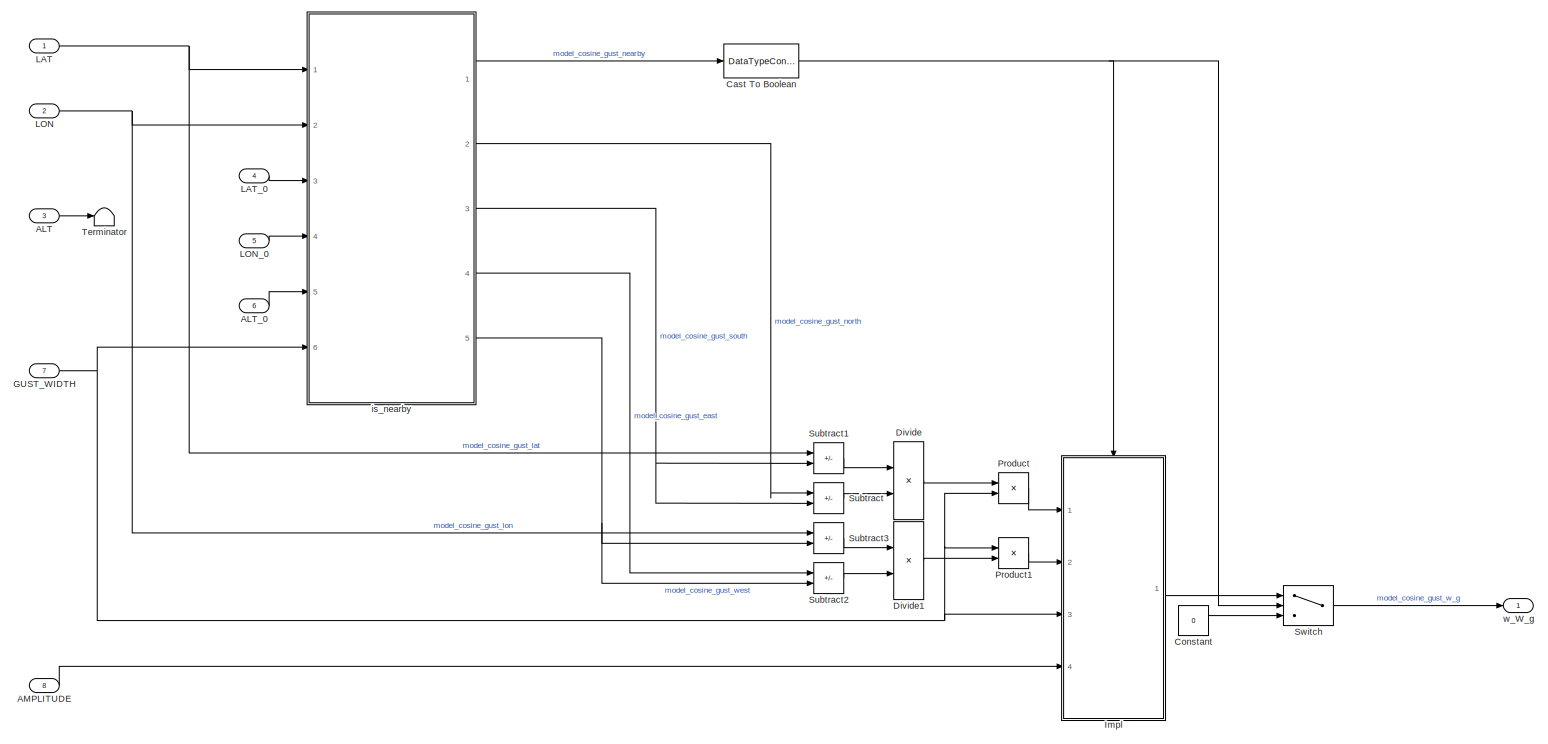
[diagram: root canvas - part 1/1, most of the canvas]
MODEL slx_9f7d04a0fe7e
KIND model
BLOCK [Inport] ALT
  OutDataTypeStr = double
  Port = 3
BLOCK [Inport] ALT_0
  OutDataTypeStr = double
  Port = 6
BLOCK [Inport] AMPLITUDE
  OutDataTypeStr = double
  Port = 8
BLOCK [DataTypeConversion] Cast To Boolean
  OutDataTypeStr = boolean
  RndMeth = Floor
  SaturateOnIntegerOverflow = off
BLOCK [Constant] Constant
  Value = 0
BLOCK [Product] Divide
  Inputs = */
  Ports = [2, 1]
BLOCK [Product] Divide1
  Inputs = */
  Ports = [2, 1]
BLOCK [Inport] GUST_WIDTH
  OutDataTypeStr = double
  Port = 7
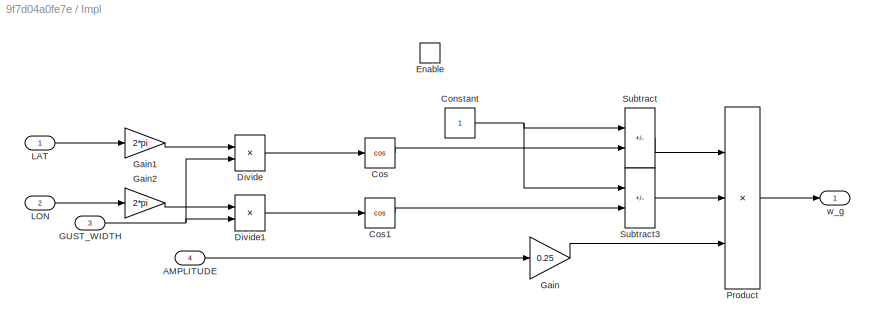
BLOCK [SubSystem] Impl
  Ports = [4, 1, 1]
  RequestExecContextInheritance = off
  TreatAsAtomicUnit = on
BLOCK [Inport] Impl/AMPLITUDE
  OutDataTypeStr = double
  Port = 4
BLOCK [Constant] Impl/Constant
BLOCK [Trigonometry] Impl/Cos
  Operator = cos
  Ports = [1, 1]
BLOCK [Trigonometry] Impl/Cos1
  Operator = cos
  Ports = [1, 1]
BLOCK [Product] Impl/Divide
  Inputs = */
  Ports = [2, 1]
BLOCK [Product] Impl/Divide1
  Inputs = */
  Ports = [2, 1]
BLOCK [EnablePort] Impl/Enable
  Ports = []
BLOCK [Inport] Impl/GUST_WIDTH
  OutDataTypeStr = double
  Port = 3
BLOCK [Gain] Impl/Gain
  Gain = 0.25
BLOCK [Gain] Impl/Gain1
  Gain = 2*pi
BLOCK [Gain] Impl/Gain2
  Gain = 2*pi
BLOCK [Inport] Impl/LAT
  OutDataTypeStr = double
BLOCK [Inport] Impl/LON
  OutDataTypeStr = double
  Port = 2
BLOCK [Product] Impl/Product
  Inputs = 3
  Ports = [3, 1]
BLOCK [Sum] Impl/Subtract
  IconShape = rectangular
  Inputs = +-
  Ports = [2, 1]
BLOCK [Sum] Impl/Subtract3
  IconShape = rectangular
  Inputs = +-
  Ports = [2, 1]
BLOCK [Outport] Impl/w_g
  OutDataTypeStr = double
BLOCK [Inport] LAT
  OutDataTypeStr = double
BLOCK [Inport] LAT_0
  OutDataTypeStr = double
  Port = 4
BLOCK [Inport] LON
  OutDataTypeStr = double
  Port = 2
BLOCK [Inport] LON_0
  OutDataTypeStr = double
  Port = 5
BLOCK [Product] Product
  Ports = [2, 1]
BLOCK [Product] Product1
  Ports = [2, 1]
BLOCK [Sum] Subtract
  IconShape = rectangular
  Inputs = +-
  Ports = [2, 1]
BLOCK [Sum] Subtract1
  IconShape = rectangular
  Inputs = +-
  Ports = [2, 1]
BLOCK [Sum] Subtract2
  IconShape = rectangular
  Inputs = +-
  Ports = [2, 1]
BLOCK [Sum] Subtract3
  IconShape = rectangular
  Inputs = +-
  Ports = [2, 1]
BLOCK [Switch] Switch
  Criteria = u2 > Threshold
  InputSameDT = off
  SaturateOnIntegerOverflow = off
BLOCK [Terminator] Terminator
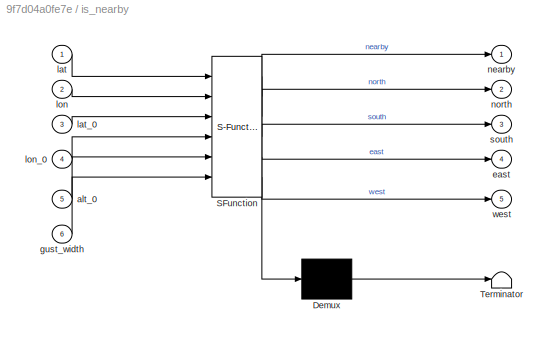
BLOCK [SubSystem] is_nearby
  ErrorFcn = Stateflow.Translate.translate
  PermitHierarchicalResolution = ExplicitOnly
  Ports = [6, 5]
  RequestExecContextInheritance = off
  SFBlockType = MATLAB Function
  TreatAsAtomicUnit = on
BLOCK [Demux] is_nearby/ Demux 
  Outputs = 1
  Ports = [1, 1]
BLOCK [S-Function] is_nearby/ SFunction 
  EnableBusSupport = on
  FunctionName = sf_sfun
  PortCounts = [6 6]
  Ports = [6, 6]
  SFcnIsStateOwnerBlock = off
  SFunctionDeploymentMode = off
  Tag = Stateflow S-Function 1
BLOCK [Terminator] is_nearby/ Terminator 
BLOCK [Inport] is_nearby/alt_0
  Port = 5
BLOCK [Outport] is_nearby/east
  Port = 4
BLOCK [Inport] is_nearby/gust_width
  Port = 6
BLOCK [Inport] is_nearby/lat
BLOCK [Inport] is_nearby/lat_0
  Port = 3
BLOCK [Inport] is_nearby/lon
  Port = 2
BLOCK [Inport] is_nearby/lon_0
  Port = 4
BLOCK [Outport] is_nearby/nearby
BLOCK [Outport] is_nearby/north
  Port = 2
BLOCK [Outport] is_nearby/south
  Port = 3
BLOCK [Outport] is_nearby/west
  Port = 5
BLOCK [Outport] w_W_g
  OutDataTypeStr = double
  SignalName = w_W_g
LINE ALT:1 -> Terminator:1
LINE ALT_0:1 -> is_nearby:5
LINE AMPLITUDE:1 -> Impl:4
NET Cast To Boolean:1 -> Impl:enable, Switch:2
LINE Constant:1 -> Switch:3
LINE Divide1:1 -> Product1:2
LINE Divide:1 -> Product:1
NET GUST_WIDTH:1 -> Impl:3, Product1:1, Product:2, is_nearby:6
LINE Impl/AMPLITUDE:1 -> Impl/Gain:1
NET Impl/Constant:1 -> Impl/Subtract3:1, Impl/Subtract:1
LINE Impl/Cos1:1 -> Impl/Subtract3:2
LINE Impl/Cos:1 -> Impl/Subtract:2
LINE Impl/Divide1:1 -> Impl/Cos1:1
LINE Impl/Divide:1 -> Impl/Cos:1
NET Impl/GUST_WIDTH:1 -> Impl/Divide1:2, Impl/Divide:2
LINE Impl/Gain1:1 -> Impl/Divide:1
LINE Impl/Gain2:1 -> Impl/Divide1:1
LINE Impl/Gain:1 -> Impl/Product:3
LINE Impl/LAT:1 -> Impl/Gain1:1
LINE Impl/LON:1 -> Impl/Gain2:1
LINE Impl/Product:1 -> Impl/w_g:1
LINE Impl/Subtract3:1 -> Impl/Product:2
LINE Impl/Subtract:1 -> Impl/Product:1
LINE Impl:1 -> Switch:1
NET LAT:1 -> Subtract1:1, is_nearby:1
LINE LAT_0:1 -> is_nearby:3
NET LON:1 -> Subtract3:1, is_nearby:2
LINE LON_0:1 -> is_nearby:4
LINE Product1:1 -> Impl:2
LINE Product:1 -> Impl:1
LINE Subtract1:1 -> Divide:1
LINE Subtract2:1 -> Divide1:2
LINE Subtract3:1 -> Divide1:1
LINE Subtract:1 -> Divide:2
LINE Switch:1 -> w_W_g:1
LINE is_nearby:1 -> Cast To Boolean:1
LINE is_nearby:2 -> Subtract:1
NET is_nearby:3 -> Subtract1:2, Subtract:2
LINE is_nearby:4 -> Subtract2:1
NET is_nearby:5 -> Subtract2:2, Subtract3:2
note: NET lines group one-source signal fan-out (src -> all destinations, sorted); 1:1 wires keep LINE
CHART is_nearby states=1 transitions=1
  STATE_LABEL 'eML_blk_kernel()'
  STATE_LABEL 'SCRIPT:\n% model_sinusoidal_gust\nfunction [nearby, north, south, east, west] = is_nearby(lat, lon, lat_0, lon_0, alt_0, gust_width)\n    % Units:\n    % [lat] = rad\n    % [lon] = rad\n    % [lat_0] = rad\n    % [lon_0] = rad\n    % [height_0] = m\n    % [gust_width] = m\n    % Independet of altitude, phenomena is available on all heights, because otherwise height distribution is needed\n\n    % Option 1: do...<+1220ch>'
CHART  states=0 transitions=0
